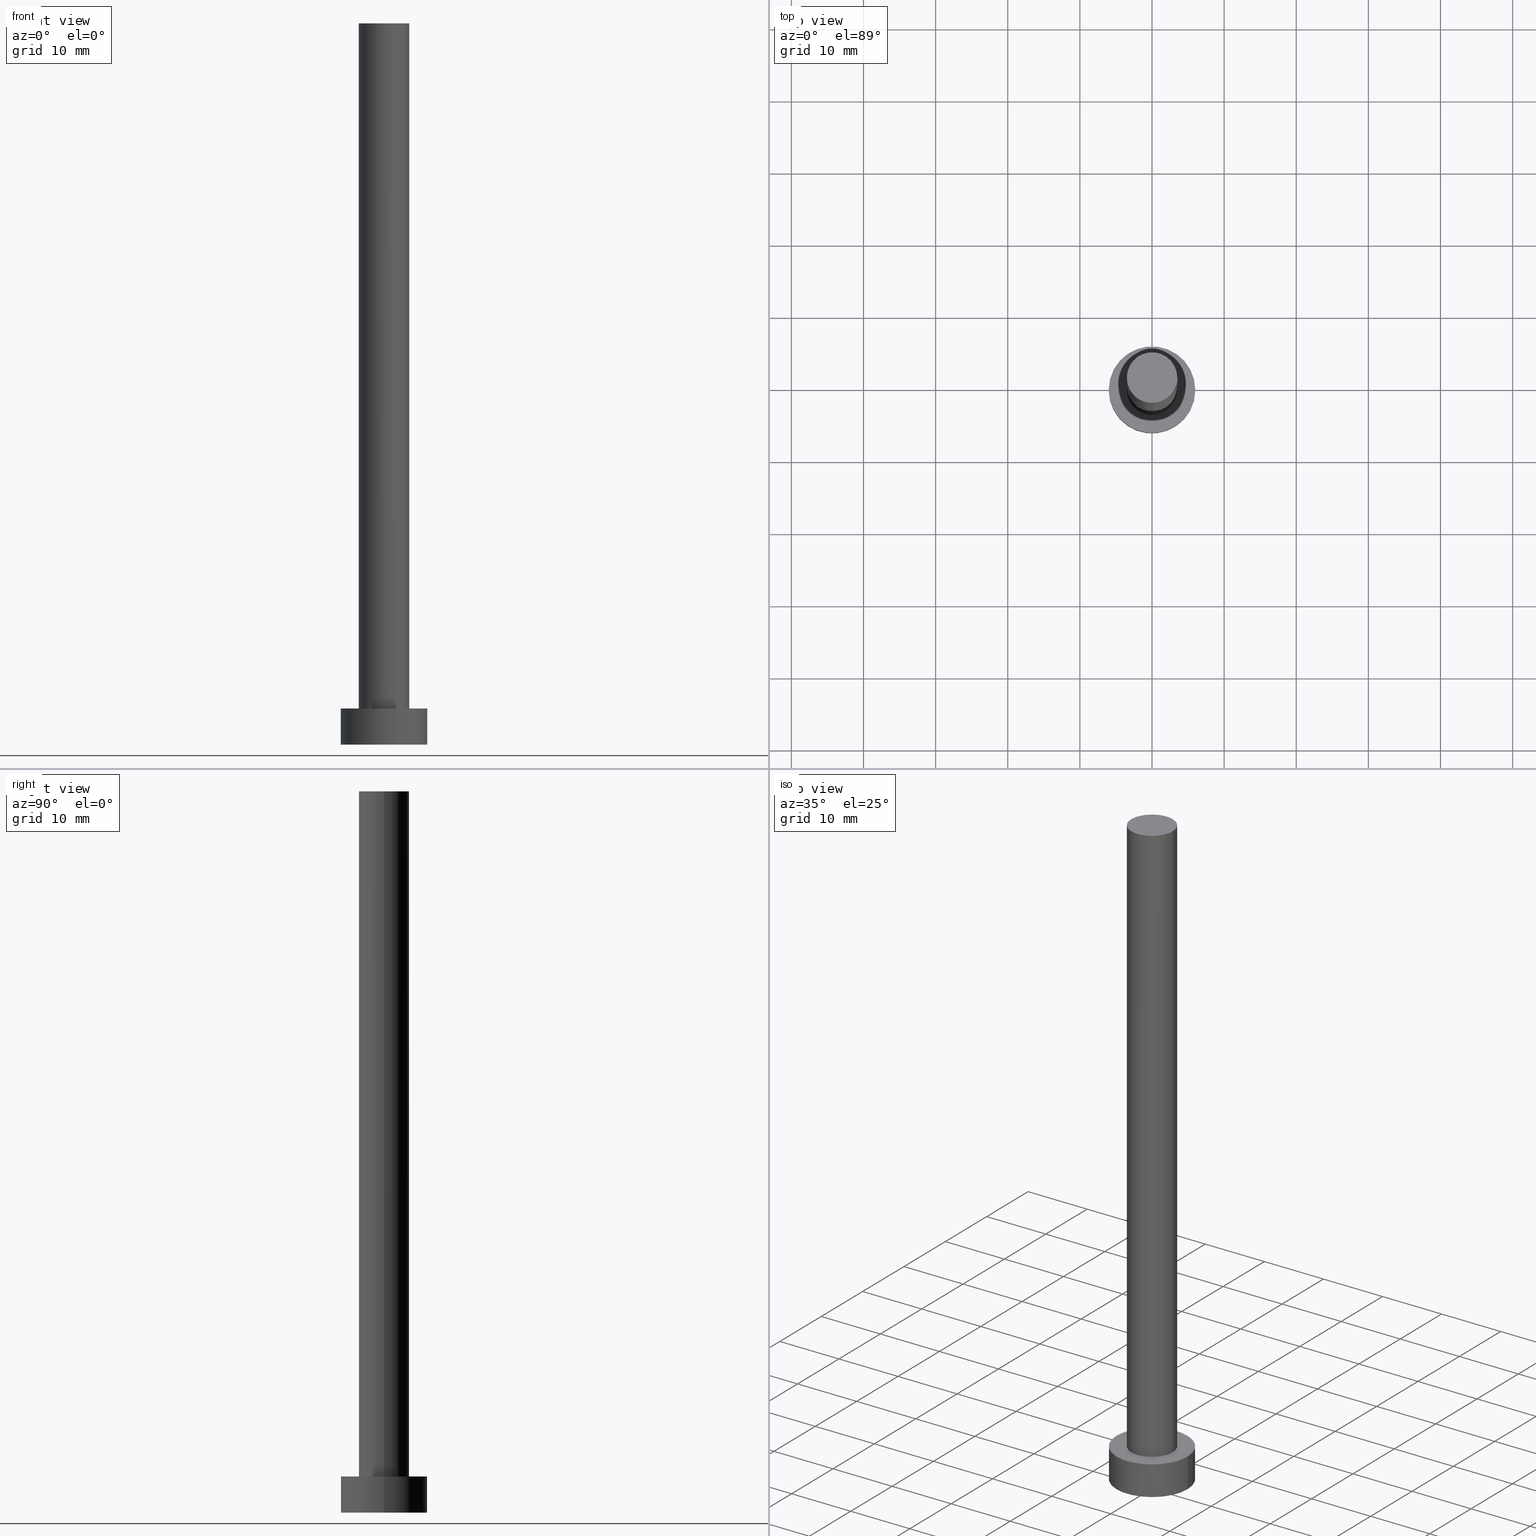
[diagram: canonical four-view strip — front | top / right | iso, engineering-drawing reading convention]
A machine part, canonical four-view strip (front | top / right | iso — engineering-drawing reading convention). The complete STEP part file that produces these views, byte-faithful:
ISO-10303-21;
HEADER;
FILE_DESCRIPTION (( 'STEP AP203' ),
    '1' );
FILE_NAME ('022c.STEP',
    '2023-02-13T11:47:20',
    ( '' ),
    ( '' ),
    'SwSTEP 2.0',
    'SolidWorks 2019',
    '' );
FILE_SCHEMA (( 'CONFIG_CONTROL_DESIGN' ));
ENDSEC;

DATA;
#1 = PLANE ( 'NONE',  #169 ) ;
#2 = DIRECTION ( 'NONE',  ( 0.000000000000000000, 0.000000000000000000, 1.000000000000000000 ) ) ;
#3 = VECTOR ( 'NONE', #207, 1000.000000000000000 ) ;
#4 = DIRECTION ( 'NONE',  ( 1.000000000000000000, 0.000000000000000000, 0.000000000000000000 ) ) ;
#5 = EDGE_CURVE ( 'NONE', #45, #202, #55, .T. ) ;
#6 = PLANE ( 'NONE',  #42 ) ;
#7 = CARTESIAN_POINT ( 'NONE',  ( -6.000000000000000888, 0.000000000000000000, 0.000000000000000000 ) ) ;
#8 = PRODUCT_DEFINITION ( 'NEZN�M�', '', #206, #43 ) ;
#9 = DATE_AND_TIME ( #25, #65 ) ;
#10 = EDGE_CURVE ( 'NONE', #123, #120, #86, .T. ) ;
#11 = AXIS2_PLACEMENT_3D ( 'NONE', #196, #219, #64 ) ;
#12 = VERTEX_POINT ( 'NONE', #132 ) ;
#13 = DIRECTION ( 'NONE',  ( -0.000000000000000000, -0.000000000000000000, -1.000000000000000000 ) ) ;
#14 = APPLICATION_CONTEXT ( 'configuration controlled 3d designs of mechanical parts and assemblies' ) ;
#15 = DIRECTION ( 'NONE',  ( 0.000000000000000000, 0.000000000000000000, 1.000000000000000000 ) ) ;
#16 = FACE_OUTER_BOUND ( 'NONE', #223, .T. ) ;
#17 = EDGE_CURVE ( 'NONE', #26, #12, #121, .T. ) ;
#18 = CARTESIAN_POINT ( 'NONE',  ( 0.000000000000000000, 0.000000000000000000, 5.000000000000000000 ) ) ;
#19 = FACE_OUTER_BOUND ( 'NONE', #103, .T. ) ;
#20 = FACE_OUTER_BOUND ( 'NONE', #91, .T. ) ;
#21 = EDGE_CURVE ( 'NONE', #202, #27, #82, .T. ) ;
#22 = PERSON ( 'NEUR�EN�', 'NEUR�EN�', 'NEUR�EN�', ('NEUR�EN�'), ('NEUR�EN�'), ('NEUR�EN�') ) ;
#23 = ORIENTED_EDGE ( 'NONE', *, *, #17, .F. ) ;
#24 =( GEOMETRIC_REPRESENTATION_CONTEXT ( 3 ) GLOBAL_UNCERTAINTY_ASSIGNED_CONTEXT ( ( #85 ) ) GLOBAL_UNIT_ASSIGNED_CONTEXT ( ( #203, #28, #144 ) ) REPRESENTATION_CONTEXT ( 'NONE', 'WORKASPACE' ) );
#25 = CALENDAR_DATE ( 2023, 13, 2 ) ;
#26 = VERTEX_POINT ( 'NONE', #128 ) ;
#27 = VERTEX_POINT ( 'NONE', #166 ) ;
#28 =( NAMED_UNIT ( * ) PLANE_ANGLE_UNIT ( ) SI_UNIT ( $, .RADIAN. ) );
#29 = ORIENTED_EDGE ( 'NONE', *, *, #209, .T. ) ;
#30 = PERSON_AND_ORGANIZATION ( #22, #95 ) ;
#31 = AXIS2_PLACEMENT_3D ( 'NONE', #18, #2, #61 ) ;
#32 = ORIENTED_EDGE ( 'NONE', *, *, #10, .F. ) ;
#33 = APPROVAL ( #229, 'NEUR�EN�' ) ;
#34 = CARTESIAN_POINT ( 'NONE',  ( 0.000000000000000000, 0.000000000000000000, 5.000000000000000000 ) ) ;
#35 = AXIS2_PLACEMENT_3D ( 'NONE', #78, #89, #133 ) ;
#36 = DATE_AND_TIME ( #184, #127 ) ;
#37 = ADVANCED_FACE ( 'NONE', ( #16 ), #252, .T. ) ;
#38 = DIRECTION ( 'NONE',  ( -1.000000000000000000, 0.000000000000000000, 0.000000000000000000 ) ) ;
#39 = DIRECTION ( 'NONE',  ( 0.000000000000000000, 0.000000000000000000, 1.000000000000000000 ) ) ;
#40 = PLANE ( 'NONE',  #69 ) ;
#41 = AXIS2_PLACEMENT_3D ( 'NONE', #111, #190, #188 ) ;
#42 = AXIS2_PLACEMENT_3D ( 'NONE', #217, #115, #154 ) ;
#43 = DESIGN_CONTEXT ( 'detailed design', #14, 'design' ) ;
#44 = CARTESIAN_POINT ( 'NONE',  ( 6.000000000000000888, 7.347880794884120722E-16, 5.000000000000000000 ) ) ;
#45 = VERTEX_POINT ( 'NONE', #168 ) ;
#46 = APPROVAL_DATE_TIME ( #74, #216 ) ;
#47 = COORDINATED_UNIVERSAL_TIME_OFFSET ( 1, 0, .AHEAD. ) ;
#48 = ORIENTED_EDGE ( 'NONE', *, *, #88, .T. ) ;
#49 = PERSON_AND_ORGANIZATION_ROLE ( 'design_supplier' ) ;
#50 = CC_DESIGN_PERSON_AND_ORGANIZATION_ASSIGNMENT ( #158, #160, ( #241 ) ) ;
#51 = VECTOR ( 'NONE', #63, 1000.000000000000000 ) ;
#52 = ORIENTED_EDGE ( 'NONE', *, *, #62, .T. ) ;
#53 = DIRECTION ( 'NONE',  ( 0.000000000000000000, 0.000000000000000000, 1.000000000000000000 ) ) ;
#54 = APPROVAL_DATE_TIME ( #79, #33 ) ;
#55 = LINE ( 'NONE', #211, #3 ) ;
#56 = SECURITY_CLASSIFICATION_LEVEL ( 'unclassified' ) ;
#57 = DIRECTION ( 'NONE',  ( 0.000000000000000000, 0.000000000000000000, 1.000000000000000000 ) ) ;
#58 = DIRECTION ( 'NONE',  ( 0.000000000000000000, 0.000000000000000000, 1.000000000000000000 ) ) ;
#59 = CC_DESIGN_DATE_AND_TIME_ASSIGNMENT ( #189, #165, ( #212 ) ) ;
#60 = LOCAL_TIME ( 12, 47, 20.00000000000000000, #47 ) ;
#61 = DIRECTION ( 'NONE',  ( 1.000000000000000000, 0.000000000000000000, 0.000000000000000000 ) ) ;
#62 = EDGE_CURVE ( 'NONE', #233, #45, #221, .T. ) ;
#63 = DIRECTION ( 'NONE',  ( -0.000000000000000000, -0.000000000000000000, -1.000000000000000000 ) ) ;
#64 = DIRECTION ( 'NONE',  ( 1.000000000000000000, 0.000000000000000000, 0.000000000000000000 ) ) ;
#65 = LOCAL_TIME ( 12, 47, 20.00000000000000000, #201 ) ;
#66 = APPROVAL_STATUS ( 'not_yet_approved' ) ;
#67 = EDGE_LOOP ( 'NONE', ( #200, #52 ) ) ;
#68 = EDGE_LOOP ( 'NONE', ( #225, #125, #102, #141 ) ) ;
#69 = AXIS2_PLACEMENT_3D ( 'NONE', #81, #58, #118 ) ;
#70 = CIRCLE ( 'NONE', #76, 6.000000000000000888 ) ;
#71 = PERSON_AND_ORGANIZATION ( #22, #95 ) ;
#72 = EDGE_LOOP ( 'NONE', ( #23, #126 ) ) ;
#73 = EDGE_CURVE ( 'NONE', #123, #12, #148, .T. ) ;
#74 = DATE_AND_TIME ( #224, #182 ) ;
#75 = FACE_OUTER_BOUND ( 'NONE', #68, .T. ) ;
#76 = AXIS2_PLACEMENT_3D ( 'NONE', #220, #83, #4 ) ;
#77 = DIRECTION ( 'NONE',  ( 1.000000000000000000, 0.000000000000000000, 0.000000000000000000 ) ) ;
#78 = CARTESIAN_POINT ( 'NONE',  ( 0.000000000000000000, 0.000000000000000000, 0.000000000000000000 ) ) ;
#79 = DATE_AND_TIME ( #234, #60 ) ;
#80 = CC_DESIGN_DATE_AND_TIME_ASSIGNMENT ( #9, #246, ( #8 ) ) ;
#81 = CARTESIAN_POINT ( 'NONE',  ( 0.000000000000000000, 0.000000000000000000, 0.000000000000000000 ) ) ;
#82 = CIRCLE ( 'NONE', #35, 6.000000000000000888 ) ;
#83 = DIRECTION ( 'NONE',  ( 0.000000000000000000, 0.000000000000000000, 1.000000000000000000 ) ) ;
#84 = ADVANCED_FACE ( 'NONE', ( #164 ), #230, .T. ) ;
#85 = UNCERTAINTY_MEASURE_WITH_UNIT (LENGTH_MEASURE( 1.000000000000000082E-05 ), #203, 'distance_accuracy_value', 'NONE');
#86 = CIRCLE ( 'NONE', #149, 3.500000000000000000 ) ;
#87 = EDGE_LOOP ( 'NONE', ( #105, #180, #48, #155 ) ) ;
#88 = EDGE_CURVE ( 'NONE', #27, #202, #173, .T. ) ;
#89 = DIRECTION ( 'NONE',  ( 0.000000000000000000, 0.000000000000000000, 1.000000000000000000 ) ) ;
#90 = CALENDAR_DATE ( 2023, 13, 2 ) ;
#91 = EDGE_LOOP ( 'NONE', ( #143, #198 ) ) ;
#92 = DIRECTION ( 'NONE',  ( 1.000000000000000000, 0.000000000000000000, 0.000000000000000000 ) ) ;
#93 = SHAPE_DEFINITION_REPRESENTATION ( #236, #174 ) ;
#94 = ADVANCED_FACE ( 'NONE', ( #75 ), #146, .T. ) ;
#95 = ORGANIZATION ( 'NEUR�EN�', 'NEUR�EN�', '' ) ;
#96 = CARTESIAN_POINT ( 'NONE',  ( -3.500000000000000000, 0.000000000000000000, 100.0000000000000000 ) ) ;
#97 = DIRECTION ( 'NONE',  ( -0.000000000000000000, -0.000000000000000000, -1.000000000000000000 ) ) ;
#98 = FACE_BOUND ( 'NONE', #72, .T. ) ;
#99 = APPROVAL_PERSON_ORGANIZATION ( #30, #117, #251 ) ;
#100 = DIRECTION ( 'NONE',  ( 0.000000000000000000, 0.000000000000000000, 1.000000000000000000 ) ) ;
#101 = CC_DESIGN_PERSON_AND_ORGANIZATION_ASSIGNMENT ( #204, #210, ( #212 ) ) ;
#102 = ORIENTED_EDGE ( 'NONE', *, *, #5, .T. ) ;
#103 = EDGE_LOOP ( 'NONE', ( #227, #179 ) ) ;
#104 = CARTESIAN_POINT ( 'NONE',  ( 0.000000000000000000, 0.000000000000000000, 0.000000000000000000 ) ) ;
#105 = ORIENTED_EDGE ( 'NONE', *, *, #62, .F. ) ;
#106 = ORIENTED_EDGE ( 'NONE', *, *, #228, .T. ) ;
#107 = PRODUCT_RELATED_PRODUCT_CATEGORY ( 'detail', '', ( #241 ) ) ;
#108 = CC_DESIGN_APPROVAL ( #216, ( #8 ) ) ;
#109 = COORDINATED_UNIVERSAL_TIME_OFFSET ( 1, 0, .AHEAD. ) ;
#110 = DIRECTION ( 'NONE',  ( -0.000000000000000000, -0.000000000000000000, -1.000000000000000000 ) ) ;
#111 = CARTESIAN_POINT ( 'NONE',  ( 0.000000000000000000, 0.000000000000000000, 100.0000000000000000 ) ) ;
#112 = APPROVAL_DATE_TIME ( #36, #117 ) ;
#113 = CARTESIAN_POINT ( 'NONE',  ( 0.000000000000000000, 0.000000000000000000, 0.000000000000000000 ) ) ;
#114 = AXIS2_PLACEMENT_3D ( 'NONE', #113, #53, #250 ) ;
#115 = DIRECTION ( 'NONE',  ( 0.000000000000000000, 0.000000000000000000, 1.000000000000000000 ) ) ;
#116 = CLOSED_SHELL ( 'NONE', ( #124, #84, #94, #253, #248, #37, #237 ) ) ;
#117 = APPROVAL ( #214, 'NEUR�EN�' ) ;
#118 = DIRECTION ( 'NONE',  ( 1.000000000000000000, 0.000000000000000000, -0.000000000000000000 ) ) ;
#119 = APPLICATION_PROTOCOL_DEFINITION ( 'international standard', 'config_control_design', 1994, #14 ) ;
#120 = VERTEX_POINT ( 'NONE', #156 ) ;
#121 = CIRCLE ( 'NONE', #152, 3.500000000000000000 ) ;
#122 = PERSON_AND_ORGANIZATION ( #22, #95 ) ;
#123 = VERTEX_POINT ( 'NONE', #151 ) ;
#124 = ADVANCED_FACE ( 'NONE', ( #176 ), #194, .T. ) ;
#125 = ORIENTED_EDGE ( 'NONE', *, *, #183, .F. ) ;
#126 = ORIENTED_EDGE ( 'NONE', *, *, #228, .F. ) ;
#127 = LOCAL_TIME ( 12, 47, 20.00000000000000000, #109 ) ;
#128 = CARTESIAN_POINT ( 'NONE',  ( -3.500000000000000000, 0.000000000000000000, 5.000000000000000000 ) ) ;
#129 = PERSON_AND_ORGANIZATION ( #22, #95 ) ;
#130 = VECTOR ( 'NONE', #191, 1000.000000000000000 ) ;
#131 = COORDINATED_UNIVERSAL_TIME_OFFSET ( 1, 0, .AHEAD. ) ;
#132 = CARTESIAN_POINT ( 'NONE',  ( 3.500000000000000000, 4.286263797015736595E-16, 5.000000000000000000 ) ) ;
#133 = DIRECTION ( 'NONE',  ( 1.000000000000000000, 0.000000000000000000, 0.000000000000000000 ) ) ;
#134 = AXIS2_PLACEMENT_3D ( 'NONE', #104, #100, #177 ) ;
#135 = CARTESIAN_POINT ( 'NONE',  ( 0.000000000000000000, 0.000000000000000000, 100.0000000000000000 ) ) ;
#136 = DIRECTION ( 'NONE',  ( 0.000000000000000000, 0.000000000000000000, 1.000000000000000000 ) ) ;
#137 = AXIS2_PLACEMENT_3D ( 'NONE', #215, #147, #38 ) ;
#138 = EDGE_CURVE ( 'NONE', #233, #27, #172, .T. ) ;
#139 = DIRECTION ( 'NONE',  ( -1.000000000000000000, 0.000000000000000000, 0.000000000000000000 ) ) ;
#140 = ORIENTED_EDGE ( 'NONE', *, *, #73, .F. ) ;
#141 = ORIENTED_EDGE ( 'NONE', *, *, #21, .T. ) ;
#142 = APPROVAL_ROLE ( '' ) ;
#143 = ORIENTED_EDGE ( 'NONE', *, *, #21, .F. ) ;
#144 =( NAMED_UNIT ( * ) SI_UNIT ( $, .STERADIAN. ) SOLID_ANGLE_UNIT ( ) );
#145 = CC_DESIGN_PERSON_AND_ORGANIZATION_ASSIGNMENT ( #129, #49, ( #206 ) ) ;
#146 = CYLINDRICAL_SURFACE ( 'NONE', #218, 6.000000000000000888 ) ;
#147 = DIRECTION ( 'NONE',  ( -0.000000000000000000, -0.000000000000000000, -1.000000000000000000 ) ) ;
#148 = LINE ( 'NONE', #235, #192 ) ;
#149 = AXIS2_PLACEMENT_3D ( 'NONE', #167, #15, #255 ) ;
#150 = CARTESIAN_POINT ( 'NONE',  ( 0.000000000000000000, 0.000000000000000000, 5.000000000000000000 ) ) ;
#151 = CARTESIAN_POINT ( 'NONE',  ( 3.500000000000000000, 4.286263797015736595E-16, 100.0000000000000000 ) ) ;
#152 = AXIS2_PLACEMENT_3D ( 'NONE', #208, #57, #92 ) ;
#153 = LINE ( 'NONE', #96, #130 ) ;
#154 = DIRECTION ( 'NONE',  ( 1.000000000000000000, 0.000000000000000000, -0.000000000000000000 ) ) ;
#155 = ORIENTED_EDGE ( 'NONE', *, *, #5, .F. ) ;
#156 = CARTESIAN_POINT ( 'NONE',  ( -3.500000000000000000, 0.000000000000000000, 100.0000000000000000 ) ) ;
#157 = APPROVAL_PERSON_ORGANIZATION ( #71, #33, #181 ) ;
#158 = PERSON_AND_ORGANIZATION ( #22, #95 ) ;
#159 = ORIENTED_EDGE ( 'NONE', *, *, #209, .F. ) ;
#160 = PERSON_AND_ORGANIZATION_ROLE ( 'design_owner' ) ;
#161 = ORIENTED_EDGE ( 'NONE', *, *, #239, .F. ) ;
#162 = APPROVAL_PERSON_ORGANIZATION ( #178, #216, #142 ) ;
#163 = CC_DESIGN_PERSON_AND_ORGANIZATION_ASSIGNMENT ( #122, #199, ( #8 ) ) ;
#164 = FACE_OUTER_BOUND ( 'NONE', #87, .T. ) ;
#165 = DATE_TIME_ROLE ( 'classification_date' ) ;
#166 = CARTESIAN_POINT ( 'NONE',  ( 6.000000000000000888, 7.347880794884120722E-16, 0.000000000000000000 ) ) ;
#167 = CARTESIAN_POINT ( 'NONE',  ( 0.000000000000000000, 0.000000000000000000, 100.0000000000000000 ) ) ;
#168 = CARTESIAN_POINT ( 'NONE',  ( -6.000000000000000888, 0.000000000000000000, 5.000000000000000000 ) ) ;
#169 = AXIS2_PLACEMENT_3D ( 'NONE', #240, #136, #171 ) ;
#170 = CARTESIAN_POINT ( 'NONE',  ( 6.000000000000000888, 7.347880794884120722E-16, 5.000000000000000000 ) ) ;
#171 = DIRECTION ( 'NONE',  ( 1.000000000000000000, 0.000000000000000000, -0.000000000000000000 ) ) ;
#172 = LINE ( 'NONE', #44, #51 ) ;
#173 = CIRCLE ( 'NONE', #114, 6.000000000000000888 ) ;
#174 = ADVANCED_BREP_SHAPE_REPRESENTATION ( '022c', ( #245, #134 ), #24 ) ;
#175 = AXIS2_PLACEMENT_3D ( 'NONE', #135, #97, #139 ) ;
#176 = FACE_OUTER_BOUND ( 'NONE', #205, .T. ) ;
#177 = DIRECTION ( 'NONE',  ( 1.000000000000000000, 0.000000000000000000, 0.000000000000000000 ) ) ;
#178 = PERSON_AND_ORGANIZATION ( #22, #95 ) ;
#179 = ORIENTED_EDGE ( 'NONE', *, *, #10, .T. ) ;
#180 = ORIENTED_EDGE ( 'NONE', *, *, #138, .T. ) ;
#181 = APPROVAL_ROLE ( '' ) ;
#182 = LOCAL_TIME ( 12, 47, 20.00000000000000000, #226 ) ;
#183 = EDGE_CURVE ( 'NONE', #45, #233, #70, .T. ) ;
#184 = CALENDAR_DATE ( 2023, 13, 2 ) ;
#185 = APPLICATION_CONTEXT ( 'configuration controlled 3d designs of mechanical parts and assemblies' ) ;
#186 = PERSON_AND_ORGANIZATION_ROLE ( 'creator' ) ;
#187 = PERSON_AND_ORGANIZATION ( #22, #95 ) ;
#188 = DIRECTION ( 'NONE',  ( -1.000000000000000000, 0.000000000000000000, 0.000000000000000000 ) ) ;
#189 = DATE_AND_TIME ( #90, #238 ) ;
#190 = DIRECTION ( 'NONE',  ( -0.000000000000000000, -0.000000000000000000, -1.000000000000000000 ) ) ;
#191 = DIRECTION ( 'NONE',  ( -0.000000000000000000, -0.000000000000000000, -1.000000000000000000 ) ) ;
#192 = VECTOR ( 'NONE', #13, 1000.000000000000000 ) ;
#193 = CC_DESIGN_SECURITY_CLASSIFICATION ( #212, ( #206 ) ) ;
#194 = CYLINDRICAL_SURFACE ( 'NONE', #175, 3.500000000000000000 ) ;
#195 = DIRECTION ( 'NONE',  ( -1.000000000000000000, 0.000000000000000000, 0.000000000000000000 ) ) ;
#196 = CARTESIAN_POINT ( 'NONE',  ( 0.000000000000000000, 0.000000000000000000, 100.0000000000000000 ) ) ;
#197 = FACE_OUTER_BOUND ( 'NONE', #67, .T. ) ;
#198 = ORIENTED_EDGE ( 'NONE', *, *, #88, .F. ) ;
#199 = PERSON_AND_ORGANIZATION_ROLE ( 'creator' ) ;
#200 = ORIENTED_EDGE ( 'NONE', *, *, #183, .T. ) ;
#201 = COORDINATED_UNIVERSAL_TIME_OFFSET ( 1, 0, .AHEAD. ) ;
#202 = VERTEX_POINT ( 'NONE', #7 ) ;
#203 =( LENGTH_UNIT ( ) NAMED_UNIT ( * ) SI_UNIT ( .MILLI., .METRE. ) );
#204 = PERSON_AND_ORGANIZATION ( #22, #95 ) ;
#205 = EDGE_LOOP ( 'NONE', ( #32, #247, #106, #159 ) ) ;
#206 = PRODUCT_DEFINITION_FORMATION_WITH_SPECIFIED_SOURCE ( 'LIBOVOLN�', '', #241, .NOT_KNOWN. ) ;
#207 = DIRECTION ( 'NONE',  ( -0.000000000000000000, -0.000000000000000000, -1.000000000000000000 ) ) ;
#208 = CARTESIAN_POINT ( 'NONE',  ( 0.000000000000000000, 0.000000000000000000, 5.000000000000000000 ) ) ;
#209 = EDGE_CURVE ( 'NONE', #120, #26, #153, .T. ) ;
#210 = PERSON_AND_ORGANIZATION_ROLE ( 'classification_officer' ) ;
#211 = CARTESIAN_POINT ( 'NONE',  ( -6.000000000000000888, 0.000000000000000000, 5.000000000000000000 ) ) ;
#212 = SECURITY_CLASSIFICATION ( '', '', #56 ) ;
#213 = CIRCLE ( 'NONE', #31, 3.500000000000000000 ) ;
#214 = APPROVAL_STATUS ( 'not_yet_approved' ) ;
#215 = CARTESIAN_POINT ( 'NONE',  ( 0.000000000000000000, 0.000000000000000000, 5.000000000000000000 ) ) ;
#216 = APPROVAL ( #66, 'NEUR�EN�' ) ;
#217 = CARTESIAN_POINT ( 'NONE',  ( 0.000000000000000000, 0.000000000000000000, 5.000000000000000000 ) ) ;
#218 = AXIS2_PLACEMENT_3D ( 'NONE', #34, #110, #195 ) ;
#219 = DIRECTION ( 'NONE',  ( 0.000000000000000000, 0.000000000000000000, 1.000000000000000000 ) ) ;
#220 = CARTESIAN_POINT ( 'NONE',  ( 0.000000000000000000, 0.000000000000000000, 5.000000000000000000 ) ) ;
#221 = CIRCLE ( 'NONE', #254, 6.000000000000000888 ) ;
#222 = CIRCLE ( 'NONE', #11, 3.500000000000000000 ) ;
#223 = EDGE_LOOP ( 'NONE', ( #140, #161, #29, #232 ) ) ;
#224 = CALENDAR_DATE ( 2023, 13, 2 ) ;
#225 = ORIENTED_EDGE ( 'NONE', *, *, #138, .F. ) ;
#226 = COORDINATED_UNIVERSAL_TIME_OFFSET ( 1, 0, .AHEAD. ) ;
#227 = ORIENTED_EDGE ( 'NONE', *, *, #239, .T. ) ;
#228 = EDGE_CURVE ( 'NONE', #12, #26, #213, .T. ) ;
#229 = APPROVAL_STATUS ( 'not_yet_approved' ) ;
#230 = CYLINDRICAL_SURFACE ( 'NONE', #137, 6.000000000000000888 ) ;
#231 = CC_DESIGN_APPROVAL ( #117, ( #212 ) ) ;
#232 = ORIENTED_EDGE ( 'NONE', *, *, #17, .T. ) ;
#233 = VERTEX_POINT ( 'NONE', #170 ) ;
#234 = CALENDAR_DATE ( 2023, 13, 2 ) ;
#235 = CARTESIAN_POINT ( 'NONE',  ( 3.500000000000000000, 4.286263797015736595E-16, 100.0000000000000000 ) ) ;
#236 = PRODUCT_DEFINITION_SHAPE ( 'NONE', 'NONE',  #8 ) ;
#237 = ADVANCED_FACE ( 'NONE', ( #19 ), #1, .T. ) ;
#238 = LOCAL_TIME ( 12, 47, 20.00000000000000000, #131 ) ;
#239 = EDGE_CURVE ( 'NONE', #120, #123, #222, .T. ) ;
#240 = CARTESIAN_POINT ( 'NONE',  ( 0.000000000000000000, 0.000000000000000000, 100.0000000000000000 ) ) ;
#241 = PRODUCT ( '022c', '022c', '', ( #244 ) ) ;
#242 = CC_DESIGN_APPROVAL ( #33, ( #206 ) ) ;
#243 = CC_DESIGN_PERSON_AND_ORGANIZATION_ASSIGNMENT ( #187, #186, ( #206 ) ) ;
#244 = MECHANICAL_CONTEXT ( 'NONE', #185, 'mechanical' ) ;
#245 = MANIFOLD_SOLID_BREP ( 'P�idat vysunut�m3', #116 ) ;
#246 = DATE_TIME_ROLE ( 'creation_date' ) ;
#247 = ORIENTED_EDGE ( 'NONE', *, *, #73, .T. ) ;
#248 = ADVANCED_FACE ( 'NONE', ( #20 ), #40, .F. ) ;
#249 = APPLICATION_PROTOCOL_DEFINITION ( 'international standard', 'config_control_design', 1994, #185 ) ;
#250 = DIRECTION ( 'NONE',  ( 1.000000000000000000, 0.000000000000000000, 0.000000000000000000 ) ) ;
#251 = APPROVAL_ROLE ( '' ) ;
#252 = CYLINDRICAL_SURFACE ( 'NONE', #41, 3.500000000000000000 ) ;
#253 = ADVANCED_FACE ( 'NONE', ( #98, #197 ), #6, .T. ) ;
#254 = AXIS2_PLACEMENT_3D ( 'NONE', #150, #39, #77 ) ;
#255 = DIRECTION ( 'NONE',  ( 1.000000000000000000, 0.000000000000000000, 0.000000000000000000 ) ) ;
ENDSEC;
END-ISO-10303-21;
